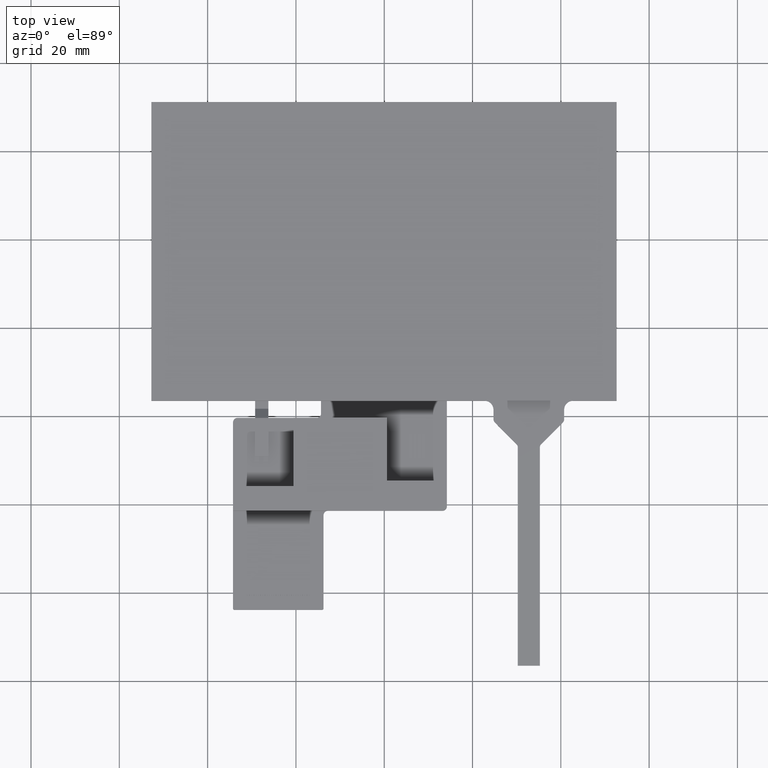
[diagram: clean part render]
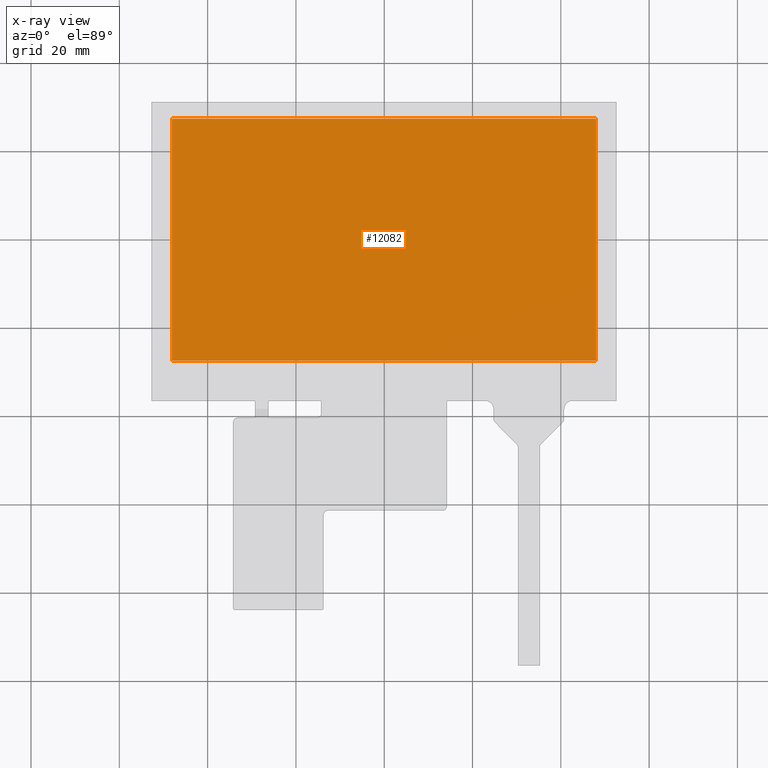
[diagram: x-ray — body ghosted, one internal face saturated and labeled with its STEP entity id]
A machine part, top view, then the same camera in x-ray: the body is ghosted and one INTERNAL B-rep face — a face not visible from any outside direction — is saturated and labeled: STEP entity #12082.
In plain terms, the highlighted planar face has unit normal (0, 0, -1).
Its self-contained STEP definition (entity closure, byte-faithful):
#268=FACE_OUTER_BOUND('',#887,.T.);
#887=EDGE_LOOP('',(#7907,#7908,#7909,#7910));
#1543=LINE('',#16688,#3213);
#1544=LINE('',#16690,#3214);
#1545=LINE('',#16692,#3215);
#1546=LINE('',#16693,#3216);
#3213=VECTOR('',#13490,10.);
#3214=VECTOR('',#13491,10.);
#3215=VECTOR('',#13492,10.);
#3216=VECTOR('',#13493,10.);
#4883=VERTEX_POINT('',#16686);
#4884=VERTEX_POINT('',#16687);
#4885=VERTEX_POINT('',#16689);
#4886=VERTEX_POINT('',#16691);
#6093=EDGE_CURVE('',#4883,#4884,#1543,.T.);
#6094=EDGE_CURVE('',#4884,#4885,#1544,.T.);
#6095=EDGE_CURVE('',#4885,#4886,#1545,.T.);
#6096=EDGE_CURVE('',#4886,#4883,#1546,.T.);
#7907=ORIENTED_EDGE('',*,*,#6093,.T.);
#7908=ORIENTED_EDGE('',*,*,#6094,.T.);
#7909=ORIENTED_EDGE('',*,*,#6095,.T.);
#7910=ORIENTED_EDGE('',*,*,#6096,.T.);
#11535=PLANE('',#12723);
#12082=ADVANCED_FACE('',(#268),#11535,.T.);
#12723=AXIS2_PLACEMENT_3D('',#16685,#13488,#13489);
#13488=DIRECTION('center_axis',(5.83882195012889E-17,2.55534994944385E-33,
-1.));
#13489=DIRECTION('ref_axis',(-8.88178419700111E-16,1.,-4.93038065763141E-32));
#13490=DIRECTION('',(1.,8.88178419700111E-16,5.83882195012889E-17));
#13491=DIRECTION('',(8.88178419700111E-16,-1.,4.93038065763141E-32));
#13492=DIRECTION('',(-1.,-8.88178419700111E-16,-5.83882195012889E-17));
#13493=DIRECTION('',(-8.88178419700111E-16,1.,-4.93038065763141E-32));
#16685=CARTESIAN_POINT('Origin',(-0.05000000000007,-2.67500000000172,-3.11199999999993));
#16686=CARTESIAN_POINT('',(-48.0700000000001,27.4279999999982,-3.11199999999993));
#16687=CARTESIAN_POINT('',(47.9699999999999,27.4279999999983,-3.11199999999993));
#16688=CARTESIAN_POINT('',(23.9599999999999,27.4279999999983,-3.11199999999993));
#16689=CARTESIAN_POINT('',(47.97,-27.4280000000017,-3.11199999999993));
#16690=CARTESIAN_POINT('',(47.9699999999999,-15.0515000000017,-3.11199999999993));
#16691=CARTESIAN_POINT('',(-48.0700000000001,-27.4280000000018,-3.11199999999993));
#16692=CARTESIAN_POINT('',(23.96,-27.4280000000017,-3.11199999999993));
#16693=CARTESIAN_POINT('',(-48.0700000000001,-15.0515000000018,-3.11199999999993));